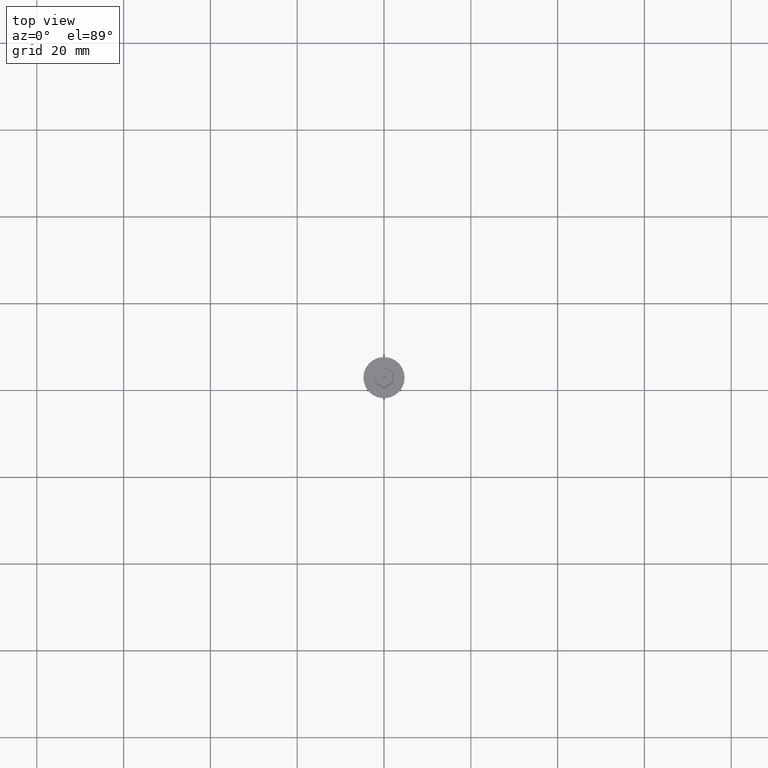
[diagram: clean part render]
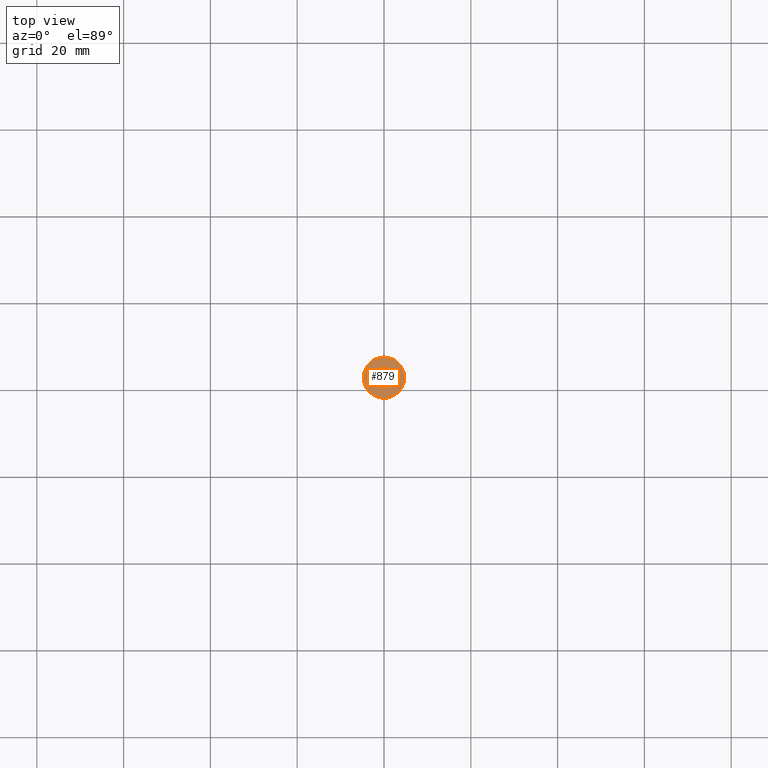
[diagram: same view with one face highlighted and labeled with its STEP entity id]
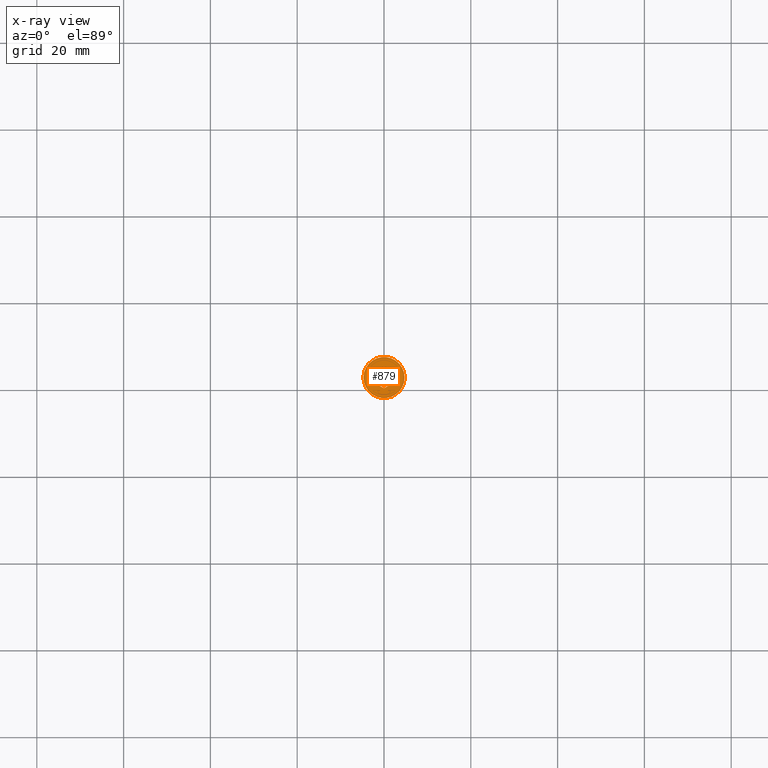
[diagram: x-ray of the same camera — body ghosted, the highlighted face saturated]
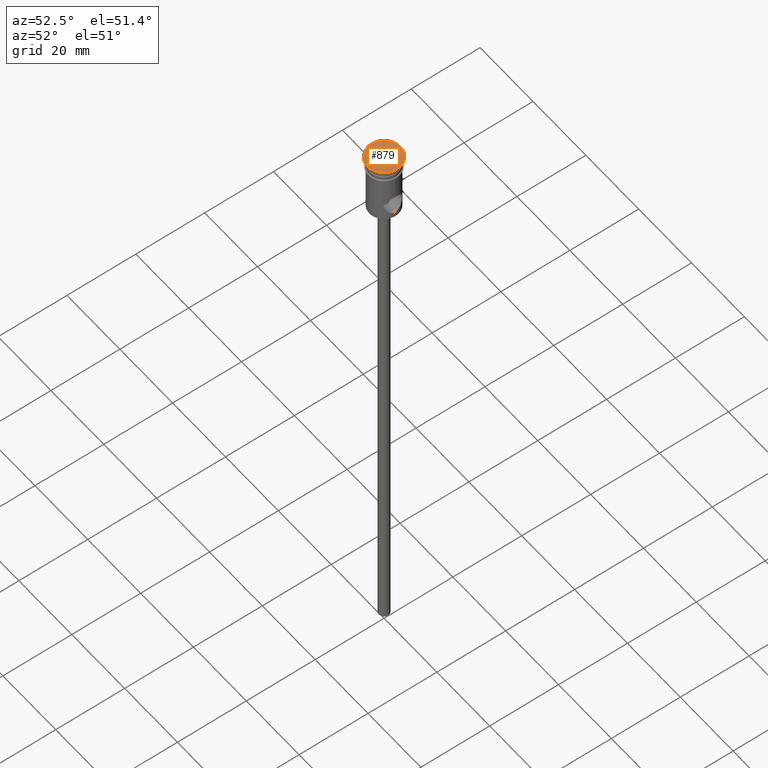
[diagram: same view with one face highlighted and labeled with its STEP entity id]
A machine part, top view. The second image highlights one B-rep face of the part: STEP entity #879.
The next image is the same camera in x-ray: the body ghosted, the highlighted face saturated — about 0% of this face is hidden behind the body in this view.
A second angle (auxiliary view) of the same face is appended — the face is thin or edge-on in the first view.
In plain terms, the highlighted planar face has unit normal (0, -0, 1).
Its self-contained STEP definition (entity closure, byte-faithful):
#1 = EDGE_CURVE ( 'NONE', #316, #1316, #381, .T. ) ;
#60 = AXIS2_PLACEMENT_3D ( 'NONE', #422, #1396, #85 ) ;
#61 = VECTOR ( 'NONE', #1170, 999.9999999999998863 ) ;
#65 = VERTEX_POINT ( 'NONE', #1058 ) ;
#75 = ORIENTED_EDGE ( 'NONE', *, *, #1260, .T. ) ;
#85 = DIRECTION ( 'NONE',  ( 1.000000000000000000, 0.000000000000000000, 0.000000000000000000 ) ) ;
#89 = EDGE_LOOP ( 'NONE', ( #1352, #519 ) ) ;
#119 = CARTESIAN_POINT ( 'NONE',  ( 4.750000000000000000, 0.000000000000000000, 0.000000000000000000 ) ) ;
#171 = LINE ( 'NONE', #517, #1055 ) ;
#188 = LINE ( 'NONE', #308, #61 ) ;
#197 = CARTESIAN_POINT ( 'NONE',  ( -6.517717499969021618E-16, -2.482606157515383050, 0.000000000000000000 ) ) ;
#219 = EDGE_CURVE ( 'NONE', #65, #1025, #1121, .T. ) ;
#233 = CARTESIAN_POINT ( 'NONE',  ( 0.000000000000000000, 0.000000000000000000, 0.000000000000000000 ) ) ;
#253 = VECTOR ( 'NONE', #1427, 1000.000000000000000 ) ;
#263 = CARTESIAN_POINT ( 'NONE',  ( 3.449642192269546890E-16, 2.482606157515383494, 0.000000000000000000 ) ) ;
#265 = VERTEX_POINT ( 'NONE', #1098 ) ;
#302 = LINE ( 'NONE', #406, #623 ) ;
#304 = FACE_OUTER_BOUND ( 'NONE', #89, .T. ) ;
#308 = CARTESIAN_POINT ( 'NONE',  ( -0.09999999999999699407, 2.424871130596422564, 0.000000000000000000 ) ) ;
#316 = VERTEX_POINT ( 'NONE', #263 ) ;
#337 = DIRECTION ( 'NONE',  ( -0.000000000000000000, -0.000000000000000000, 1.000000000000000000 ) ) ;
#341 = VERTEX_POINT ( 'NONE', #698 ) ;
#381 = LINE ( 'NONE', #817, #463 ) ;
#406 = CARTESIAN_POINT ( 'NONE',  ( -2.149999999999994138, 1.125833024919770109, 0.000000000000000000 ) ) ;
#420 = EDGE_CURVE ( 'NONE', #1316, #849, #859, .T. ) ;
#422 = CARTESIAN_POINT ( 'NONE',  ( 0.000000000000000000, 0.000000000000000000, 0.000000000000000000 ) ) ;
#430 = ORIENTED_EDGE ( 'NONE', *, *, #1, .T. ) ;
#458 = CARTESIAN_POINT ( 'NONE',  ( 2.149999999999993250, 1.241303078757691969, 0.000000000000000000 ) ) ;
#463 = VECTOR ( 'NONE', #1238, 1000.000000000000114 ) ;
#517 = CARTESIAN_POINT ( 'NONE',  ( -2.049999999999997602, -1.299038105676652011, 0.000000000000000000 ) ) ;
#519 = ORIENTED_EDGE ( 'NONE', *, *, #219, .T. ) ;
#530 = DIRECTION ( 'NONE',  ( 1.000000000000000000, 0.000000000000000000, 0.000000000000000000 ) ) ;
#607 = AXIS2_PLACEMENT_3D ( 'NONE', #1072, #1413, #530 ) ;
#623 = VECTOR ( 'NONE', #1289, 1000.000000000000000 ) ;
#636 = PLANE ( 'NONE',  #607 ) ;
#646 = ORIENTED_EDGE ( 'NONE', *, *, #420, .T. ) ;
#665 = AXIS2_PLACEMENT_3D ( 'NONE', #233, #337, #1304 ) ;
#671 = CARTESIAN_POINT ( 'NONE',  ( 0.09999999999999617528, -2.424871130596422564, 0.000000000000000000 ) ) ;
#690 = CIRCLE ( 'NONE', #60, 4.750000000000000000 ) ;
#698 = CARTESIAN_POINT ( 'NONE',  ( -2.149999999999994582, -1.241303078757691303, 0.000000000000000000 ) ) ;
#707 = EDGE_CURVE ( 'NONE', #775, #341, #171, .T. ) ;
#739 = DIRECTION ( 'NONE',  ( -1.926044357355332218E-16, -1.000000000000000000, 0.000000000000000000 ) ) ;
#775 = VERTEX_POINT ( 'NONE', #197 ) ;
#817 = CARTESIAN_POINT ( 'NONE',  ( 2.049999999999996714, 1.299038105676652455, 0.000000000000000000 ) ) ;
#849 = VERTEX_POINT ( 'NONE', #1392 ) ;
#852 = EDGE_LOOP ( 'NONE', ( #1177, #1285, #75, #430, #646, #1102 ) ) ;
#859 = LINE ( 'NONE', #1184, #1262 ) ;
#879 = ADVANCED_FACE ( 'NONE', ( #1284, #304 ), #636, .T. ) ;
#999 = LINE ( 'NONE', #671, #253 ) ;
#1025 = VERTEX_POINT ( 'NONE', #119 ) ;
#1055 = VECTOR ( 'NONE', #1141, 1000.000000000000114 ) ;
#1058 = CARTESIAN_POINT ( 'NONE',  ( -4.750000000000000000, 5.817072295949927426E-16, 0.000000000000000000 ) ) ;
#1072 = CARTESIAN_POINT ( 'NONE',  ( 0.000000000000000000, 0.000000000000000000, 0.000000000000000000 ) ) ;
#1098 = CARTESIAN_POINT ( 'NONE',  ( -2.149999999999994138, 1.241303078757690859, 0.000000000000000000 ) ) ;
#1102 = ORIENTED_EDGE ( 'NONE', *, *, #1365, .T. ) ;
#1121 = CIRCLE ( 'NONE', #665, 4.750000000000000000 ) ;
#1141 = DIRECTION ( 'NONE',  ( -0.8660254037844385966, 0.5000000000000001110, 0.000000000000000000 ) ) ;
#1155 = EDGE_CURVE ( 'NONE', #1025, #65, #690, .T. ) ;
#1170 = DIRECTION ( 'NONE',  ( 0.8660254037844385966, 0.5000000000000002220, 0.000000000000000000 ) ) ;
#1177 = ORIENTED_EDGE ( 'NONE', *, *, #707, .T. ) ;
#1184 = CARTESIAN_POINT ( 'NONE',  ( 2.149999999999992806, -1.125833024919770331, 0.000000000000000000 ) ) ;
#1185 = EDGE_CURVE ( 'NONE', #341, #265, #302, .T. ) ;
#1238 = DIRECTION ( 'NONE',  ( 0.8660254037844385966, -0.5000000000000001110, 0.000000000000000000 ) ) ;
#1260 = EDGE_CURVE ( 'NONE', #265, #316, #188, .T. ) ;
#1262 = VECTOR ( 'NONE', #739, 1000.000000000000000 ) ;
#1284 = FACE_BOUND ( 'NONE', #852, .T. ) ;
#1285 = ORIENTED_EDGE ( 'NONE', *, *, #1185, .T. ) ;
#1289 = DIRECTION ( 'NONE',  ( 9.630221786776664787E-17, 1.000000000000000000, 0.000000000000000000 ) ) ;
#1304 = DIRECTION ( 'NONE',  ( 1.000000000000000000, 0.000000000000000000, 0.000000000000000000 ) ) ;
#1316 = VERTEX_POINT ( 'NONE', #458 ) ;
#1352 = ORIENTED_EDGE ( 'NONE', *, *, #1155, .T. ) ;
#1365 = EDGE_CURVE ( 'NONE', #849, #775, #999, .T. ) ;
#1392 = CARTESIAN_POINT ( 'NONE',  ( 2.149999999999992806, -1.241303078757692413, 0.000000000000000000 ) ) ;
#1396 = DIRECTION ( 'NONE',  ( -0.000000000000000000, -0.000000000000000000, 1.000000000000000000 ) ) ;
#1413 = DIRECTION ( 'NONE',  ( 0.000000000000000000, -0.000000000000000000, 1.000000000000000000 ) ) ;
#1427 = DIRECTION ( 'NONE',  ( -0.8660254037844387076, -0.4999999999999998335, 0.000000000000000000 ) ) ;